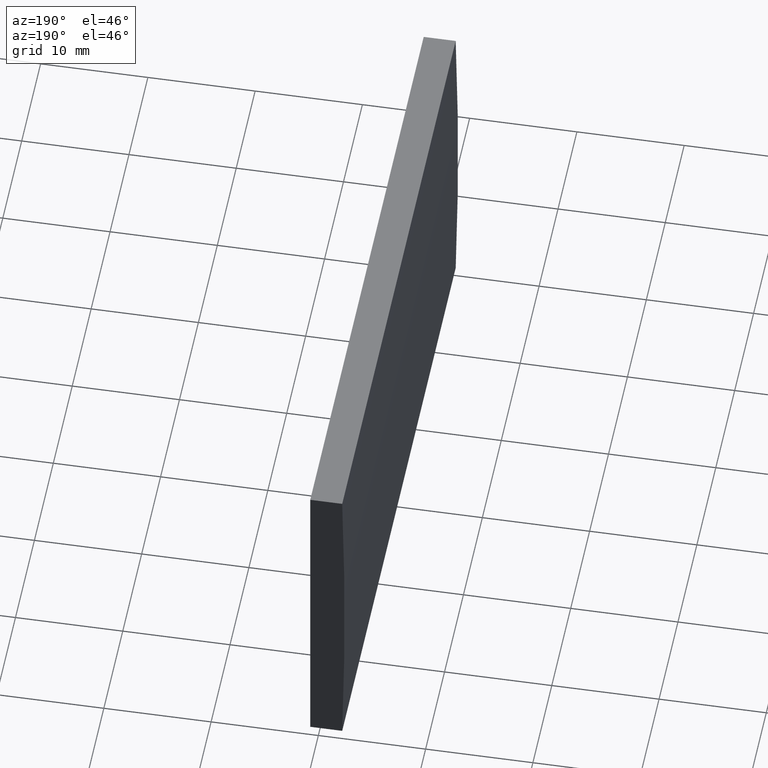
[diagram: clean part render]
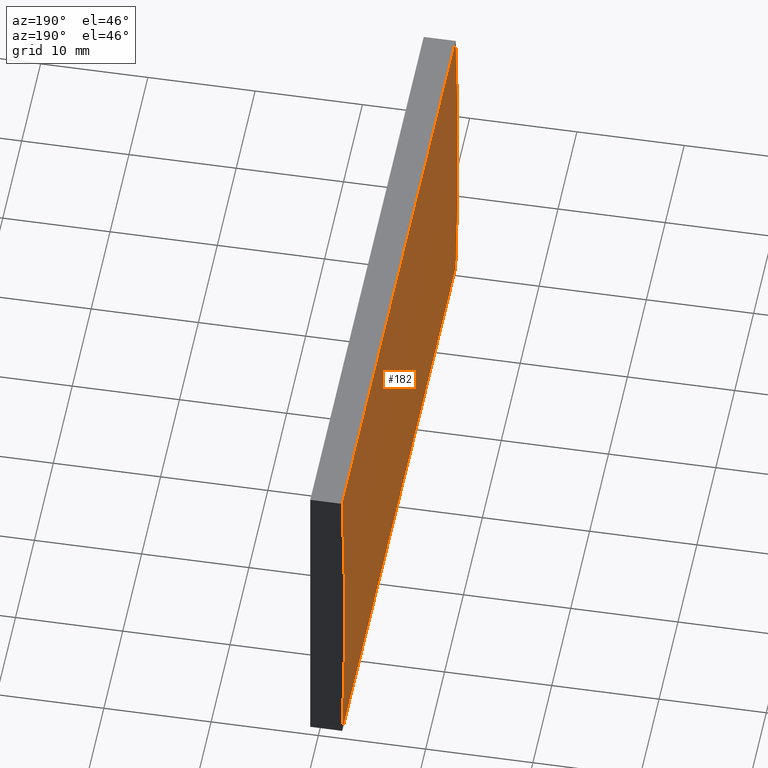
[diagram: same view with one face highlighted and labeled with its STEP entity id]
A machine part, auxiliary view. The second image highlights one B-rep face of the part: STEP entity #182.
In plain terms, the highlighted cylindrical surface (partial cylindrical patch) has radius 516.8 mm, axis along (-0, -1, -0).
Its self-contained STEP definition (entity closure, byte-faithful):
#1 = ORIENTED_EDGE ( 'NONE', *, *, #23, .T. ) ;
#2 = CARTESIAN_POINT ( 'NONE',  ( 4.355204334851265500, 60.00000000000000000, 4.286263797015675000E-017 ) ) ;
#6 = VERTEX_POINT ( 'NONE', #192 ) ;
#16 = CARTESIAN_POINT ( 'NONE',  ( -512.2270640406708300, 0.0000000000000000000, -15.00000000000000000 ) ) ;
#23 = EDGE_CURVE ( 'NONE', #148, #154, #77, .T. ) ;
#24 = DIRECTION ( 'NONE',  ( 0.0000000000000000000, 0.0000000000000000000, -1.000000000000000000 ) ) ;
#31 = EDGE_CURVE ( 'NONE', #154, #6, #204, .T. ) ;
#33 = DIRECTION ( 'NONE',  ( 0.0000000000000000000, 0.0000000000000000000, 1.000000000000000000 ) ) ;
#38 = VECTOR ( 'NONE', #68, 1000.000000000000000 ) ;
#57 = EDGE_LOOP ( 'NONE', ( #105, #81, #102, #1 ) ) ;
#61 = EDGE_CURVE ( 'NONE', #87, #6, #153, .T. ) ;
#64 = CYLINDRICAL_SURFACE ( 'NONE', #146, 516.7999999999999500 ) ;
#68 = DIRECTION ( 'NONE',  ( -0.0000000000000000000, -1.000000000000000000, -0.0000000000000000000 ) ) ;
#72 = EDGE_CURVE ( 'NONE', #148, #87, #145, .T. ) ;
#73 = FACE_OUTER_BOUND ( 'NONE', #57, .T. ) ;
#77 = LINE ( 'NONE', #174, #38 ) ;
#81 = ORIENTED_EDGE ( 'NONE', *, *, #61, .F. ) ;
#87 = VERTEX_POINT ( 'NONE', #191 ) ;
#91 = VECTOR ( 'NONE', #188, 1000.000000000000000 ) ;
#102 = ORIENTED_EDGE ( 'NONE', *, *, #72, .F. ) ;
#104 = AXIS2_PLACEMENT_3D ( 'NONE', #2, #163, #33 ) ;
#105 = ORIENTED_EDGE ( 'NONE', *, *, #31, .T. ) ;
#123 = CARTESIAN_POINT ( 'NONE',  ( 4.355204334851265500, 60.00000000000000000, 4.286263797015675000E-017 ) ) ;
#145 = CIRCLE ( 'NONE', #104, 516.7999999999999500 ) ;
#146 = AXIS2_PLACEMENT_3D ( 'NONE', #123, #196, #24 ) ;
#148 = VERTEX_POINT ( 'NONE', #175 ) ;
#153 = LINE ( 'NONE', #184, #91 ) ;
#154 = VERTEX_POINT ( 'NONE', #16 ) ;
#163 = DIRECTION ( 'NONE',  ( 0.0000000000000000000, 1.000000000000000000, 0.0000000000000000000 ) ) ;
#171 = CARTESIAN_POINT ( 'NONE',  ( 4.355204334851265500, 0.0000000000000000000, 4.286263797015675000E-017 ) ) ;
#172 = DIRECTION ( 'NONE',  ( 0.0000000000000000000, 1.000000000000000000, 0.0000000000000000000 ) ) ;
#173 = DIRECTION ( 'NONE',  ( 0.0000000000000000000, 0.0000000000000000000, 1.000000000000000000 ) ) ;
#174 = CARTESIAN_POINT ( 'NONE',  ( -512.2270640406708300, 60.00000000000000000, -15.00000000000000000 ) ) ;
#175 = CARTESIAN_POINT ( 'NONE',  ( -512.2270640406708300, 60.00000000000000000, -15.00000000000000000 ) ) ;
#182 = ADVANCED_FACE ( 'NONE', ( #73 ), #64, .T. ) ;
#184 = CARTESIAN_POINT ( 'NONE',  ( -512.2270640406708300, 60.00000000000000000, 15.00000000000000000 ) ) ;
#188 = DIRECTION ( 'NONE',  ( -0.0000000000000000000, -1.000000000000000000, -0.0000000000000000000 ) ) ;
#191 = CARTESIAN_POINT ( 'NONE',  ( -512.2270640406708300, 60.00000000000000000, 15.00000000000000000 ) ) ;
#192 = CARTESIAN_POINT ( 'NONE',  ( -512.2270640406708300, 0.0000000000000000000, 15.00000000000000000 ) ) ;
#196 = DIRECTION ( 'NONE',  ( -0.0000000000000000000, -1.000000000000000000, -0.0000000000000000000 ) ) ;
#201 = AXIS2_PLACEMENT_3D ( 'NONE', #171, #172, #173 ) ;
#204 = CIRCLE ( 'NONE', #201, 516.7999999999999500 ) ;